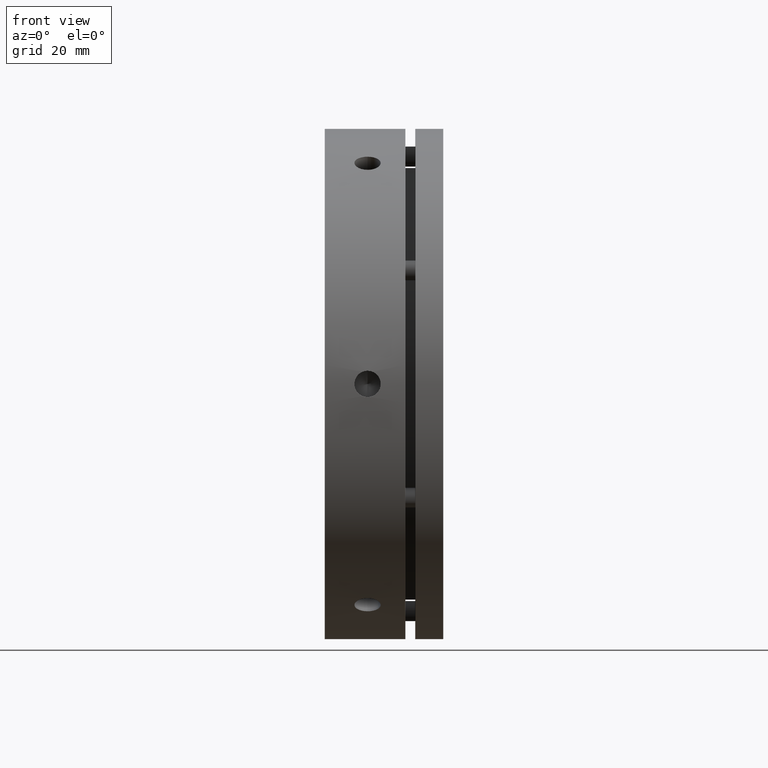
[diagram: clean part render]
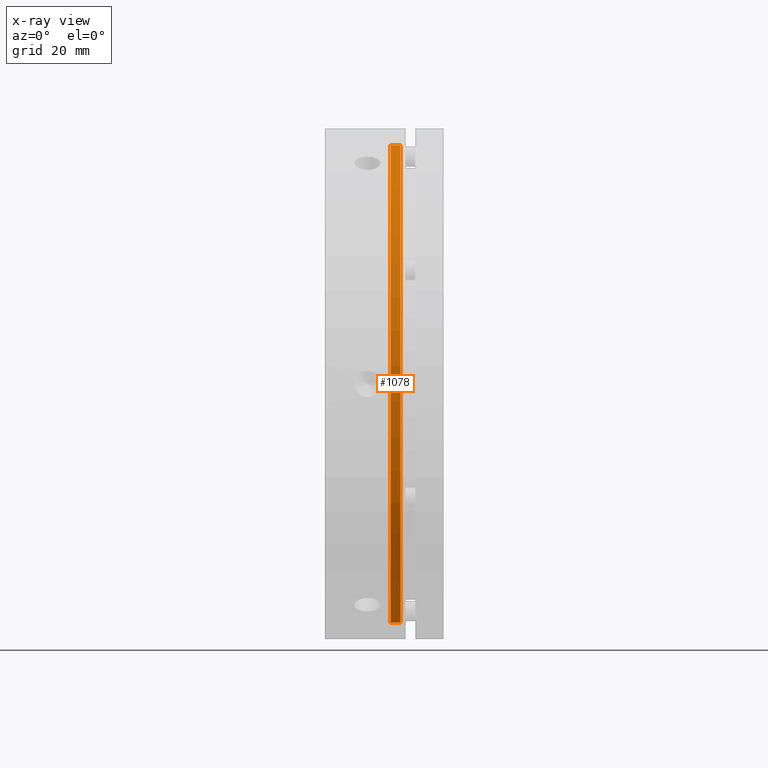
[diagram: x-ray — body ghosted, one internal face saturated and labeled with its STEP entity id]
A machine part, front view, then the same camera in x-ray: the body is ghosted and one INTERNAL B-rep face — a face not visible from any outside direction — is saturated and labeled: STEP entity #1078.
In plain terms, the highlighted cylindrical surface (partial cylindrical patch) has radius 72.5 mm, axis along (-1, 0, 0).
Its self-contained STEP definition (entity closure, byte-faithful):
#1078 = ADVANCED_FACE ( 'NONE', ( #4785 ), #1821, .F. ) ;
#1214 = AXIS2_PLACEMENT_3D ( 'NONE', #2613, #2614, #2615 ) ;
#1253 = AXIS2_PLACEMENT_3D ( 'NONE', #2546, #2547, #2548 ) ;
#1528 = CIRCLE ( 'NONE', #1253, 72.50000000000000000 ) ;
#1530 = LINE ( 'NONE', #2544, #1534 ) ;
#1534 = VECTOR ( 'NONE', #2549, 1000.000000000000000 ) ;
#1551 = LINE ( 'NONE', #2608, #1554 ) ;
#1552 = CIRCLE ( 'NONE', #1214, 72.50000000000000000 ) ;
#1554 = VECTOR ( 'NONE', #2609, 1000.000000000000000 ) ;
#1821 = CYLINDRICAL_SURFACE ( 'NONE', #3899, 72.50000000000000000 ) ;
#1835 = DIRECTION ( 'NONE',  ( 0.0000000000000000000, 0.0000000000000000000, 1.000000000000000000 ) ) ;
#1837 = DIRECTION ( 'NONE',  ( -1.000000000000000000, 0.0000000000000000000, 0.0000000000000000000 ) ) ;
#1839 = CARTESIAN_POINT ( 'NONE',  ( 21.49999999999997200, 0.0000000000000000000, 0.0000000000000000000 ) ) ;
#2544 = CARTESIAN_POINT ( 'NONE',  ( 21.49999999999997200, 0.0000000000000000000, 72.50000000000000000 ) ) ;
#2546 = CARTESIAN_POINT ( 'NONE',  ( 19.99999999999996800, 0.0000000000000000000, 0.0000000000000000000 ) ) ;
#2547 = DIRECTION ( 'NONE',  ( -1.000000000000000000, 0.0000000000000000000, 0.0000000000000000000 ) ) ;
#2548 = DIRECTION ( 'NONE',  ( 0.0000000000000000000, 0.0000000000000000000, 1.000000000000000000 ) ) ;
#2549 = DIRECTION ( 'NONE',  ( -1.000000000000000000, 0.0000000000000000000, 0.0000000000000000000 ) ) ;
#2608 = CARTESIAN_POINT ( 'NONE',  ( 21.49999999999997200, 8.878689293818309300E-015, -72.50000000000000000 ) ) ;
#2609 = DIRECTION ( 'NONE',  ( -1.000000000000000000, 0.0000000000000000000, 0.0000000000000000000 ) ) ;
#2613 = CARTESIAN_POINT ( 'NONE',  ( 22.99999999999997500, 0.0000000000000000000, 0.0000000000000000000 ) ) ;
#2614 = DIRECTION ( 'NONE',  ( 1.000000000000000000, -0.0000000000000000000, -0.0000000000000000000 ) ) ;
#2615 = DIRECTION ( 'NONE',  ( 0.0000000000000000000, 0.0000000000000000000, 1.000000000000000000 ) ) ;
#2849 = CARTESIAN_POINT ( 'NONE',  ( 19.99999999999996800, 8.878689293818309300E-015, -72.50000000000000000 ) ) ;
#2865 = CARTESIAN_POINT ( 'NONE',  ( 19.99999999999996800, 0.0000000000000000000, 72.50000000000000000 ) ) ;
#2891 = CARTESIAN_POINT ( 'NONE',  ( 22.99999999999997500, 0.0000000000000000000, 72.50000000000000000 ) ) ;
#2918 = CARTESIAN_POINT ( 'NONE',  ( 22.99999999999997500, 8.878689293818309300E-015, -72.50000000000000000 ) ) ;
#3004 = EDGE_CURVE ( 'NONE', #3643, #3659, #1528, .T. ) ;
#3006 = EDGE_CURVE ( 'NONE', #3685, #3659, #1530, .T. ) ;
#3019 = EDGE_CURVE ( 'NONE', #3685, #3712, #1552, .T. ) ;
#3020 = EDGE_CURVE ( 'NONE', #3712, #3643, #1551, .T. ) ;
#3407 = ORIENTED_EDGE ( 'NONE', *, *, #3006, .F. ) ;
#3409 = ORIENTED_EDGE ( 'NONE', *, *, #3004, .T. ) ;
#3413 = EDGE_LOOP ( 'NONE', ( #3565, #3569, #3409, #3407 ) ) ;
#3565 = ORIENTED_EDGE ( 'NONE', *, *, #3019, .T. ) ;
#3569 = ORIENTED_EDGE ( 'NONE', *, *, #3020, .T. ) ;
#3643 = VERTEX_POINT ( 'NONE', #2849 ) ;
#3659 = VERTEX_POINT ( 'NONE', #2865 ) ;
#3685 = VERTEX_POINT ( 'NONE', #2891 ) ;
#3712 = VERTEX_POINT ( 'NONE', #2918 ) ;
#3899 = AXIS2_PLACEMENT_3D ( 'NONE', #1839, #1837, #1835 ) ;
#4785 = FACE_OUTER_BOUND ( 'NONE', #3413, .T. ) ;